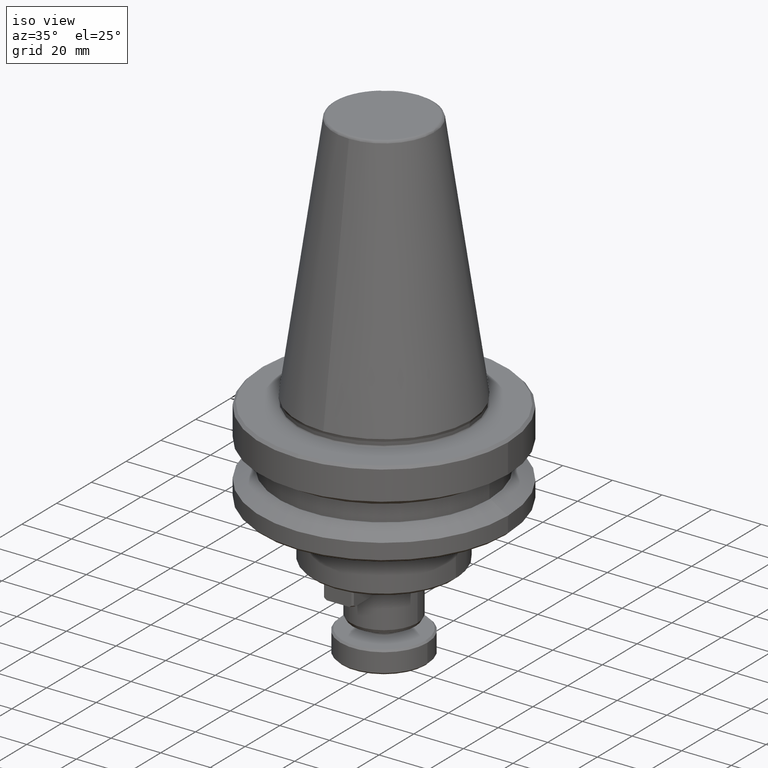
[diagram: clean part render]
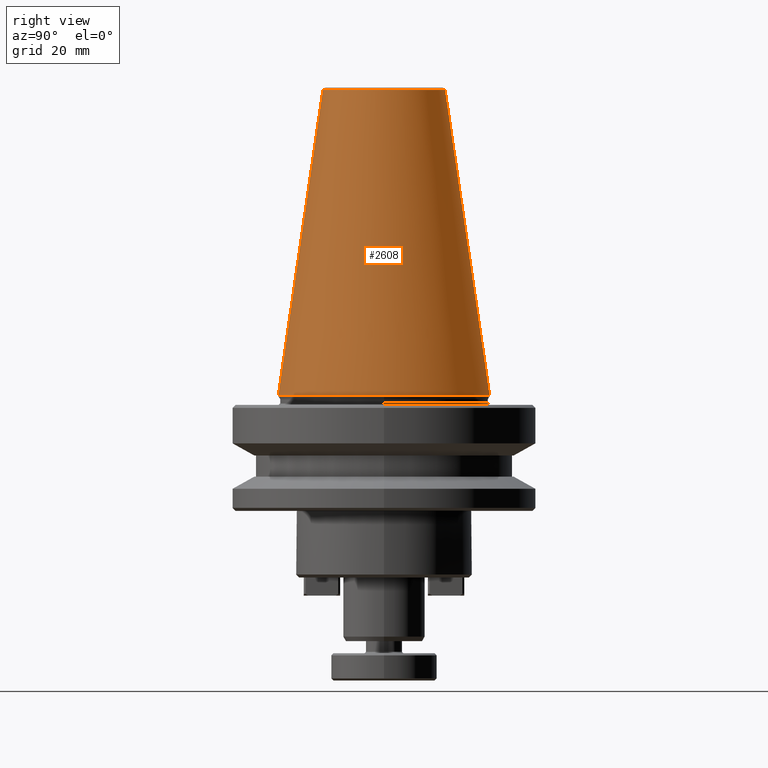
[diagram: tour spotlight — one face highlighted and labeled with its STEP entity id]
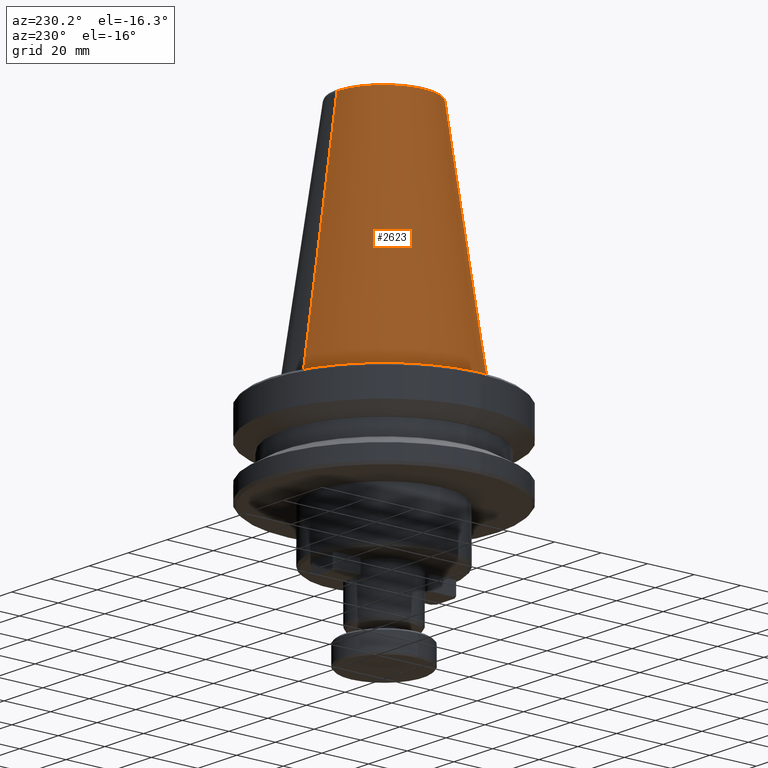
[diagram: tour spotlight — one face highlighted and labeled with its STEP entity id]
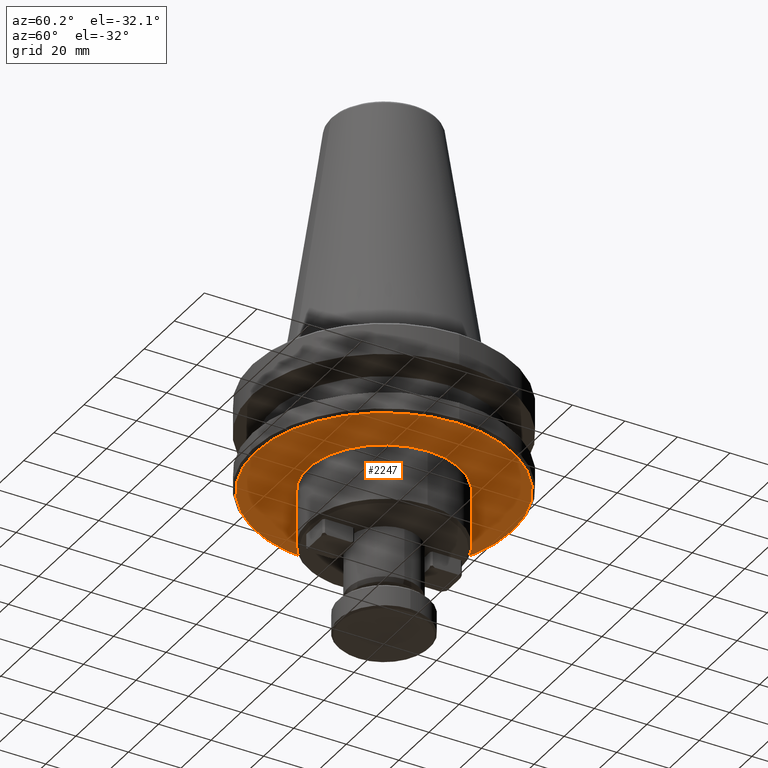
[diagram: tour spotlight — one face highlighted and labeled with its STEP entity id]
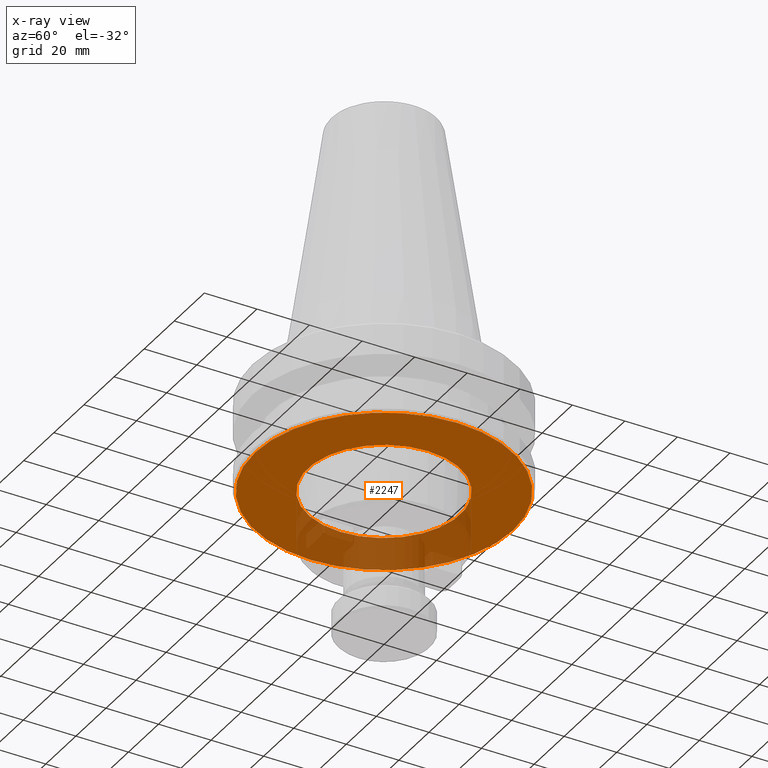
[diagram: x-ray of the same camera — body ghosted, this tour face saturated]
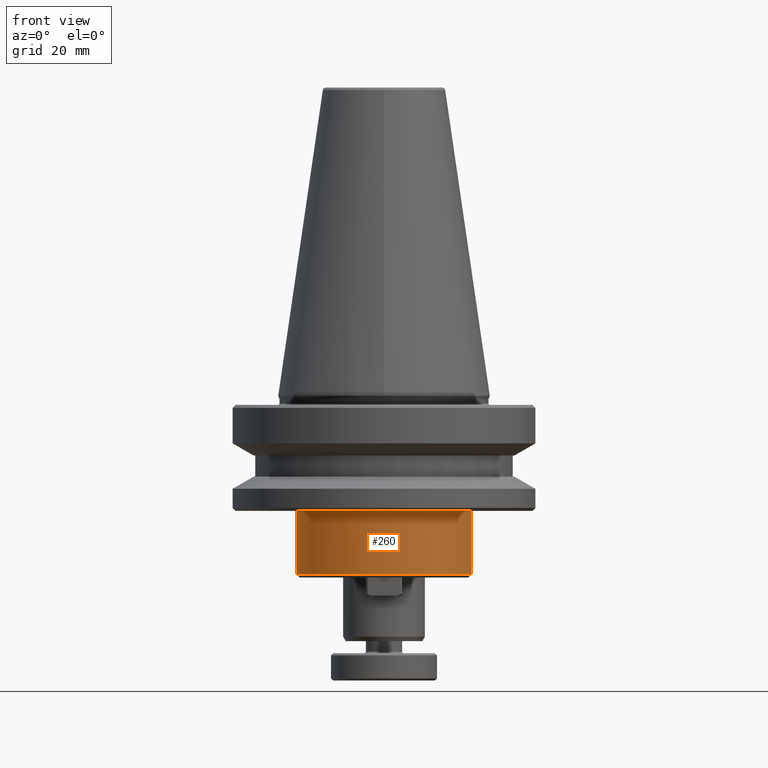
[diagram: tour spotlight — one face highlighted and labeled with its STEP entity id]
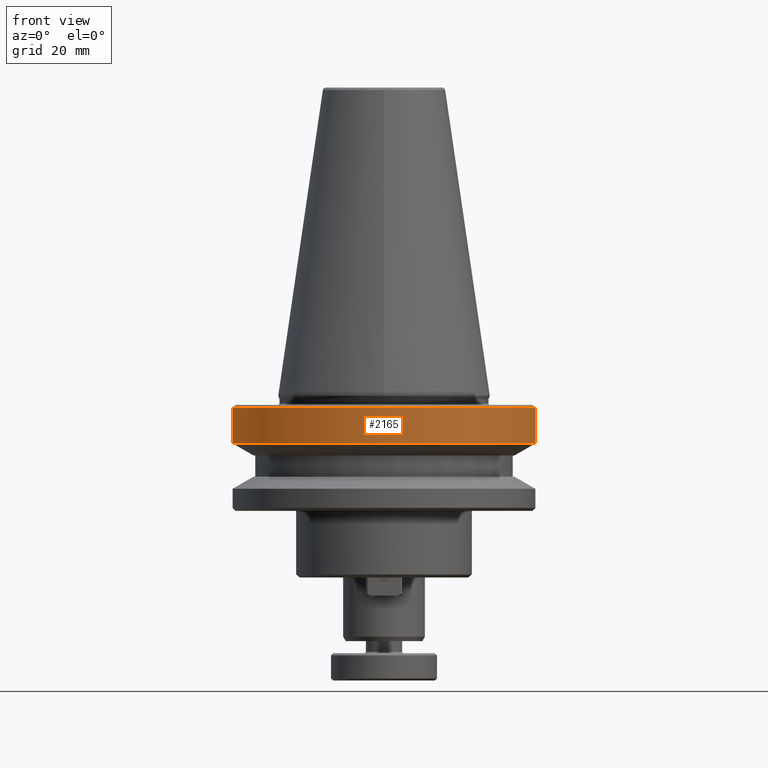
[diagram: tour spotlight — one face highlighted and labeled with its STEP entity id]
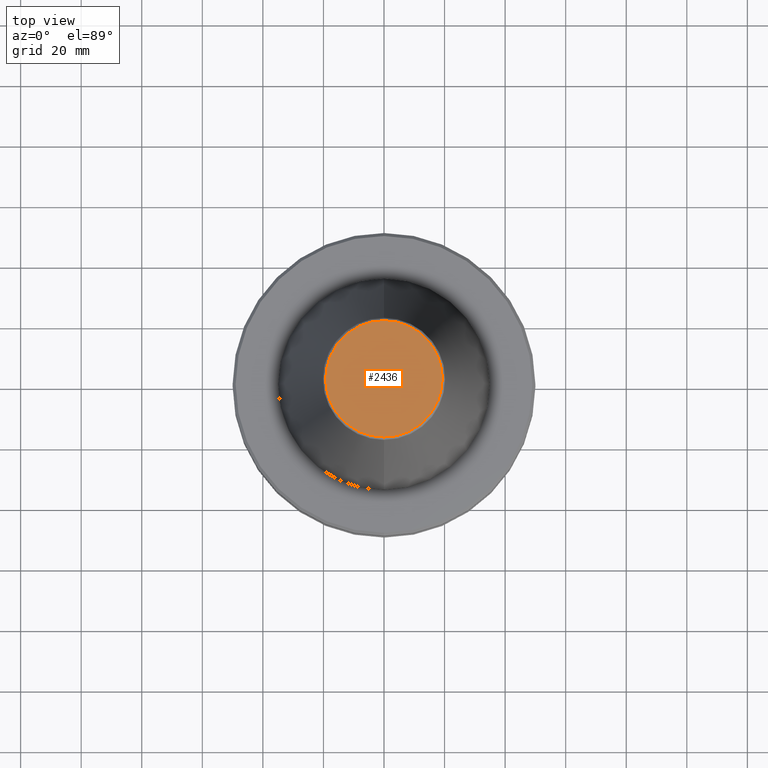
[diagram: tour spotlight — one face highlighted and labeled with its STEP entity id]
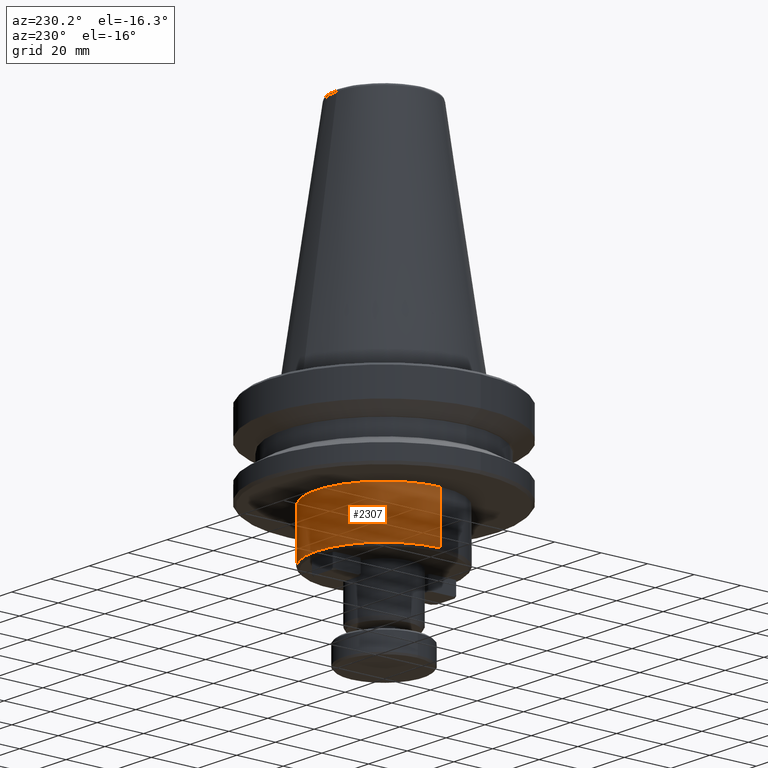
[diagram: tour spotlight — one face highlighted and labeled with its STEP entity id]
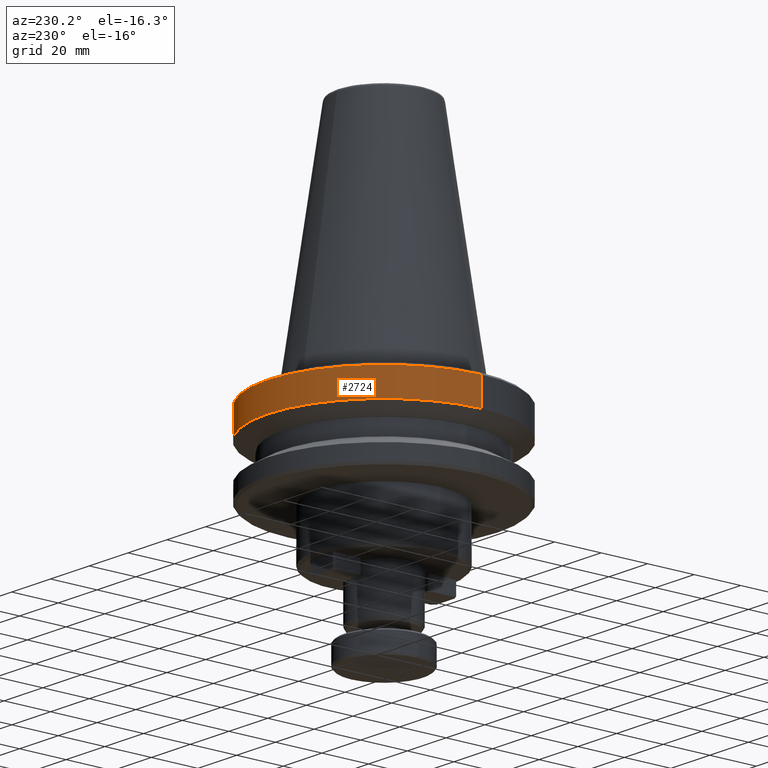
[diagram: tour spotlight — one face highlighted and labeled with its STEP entity id]
A machine part: a face-by-face anatomy tour. The part has 77 B-rep faces; the first image is the clean iso view, then the 8 largest visible faces are spotlighted one at a time (largest first), each with its STEP entity span.

Face 1 — right view, entity #2608. In plain terms, the highlighted conical surface has half-angle 8.297 deg.
Definition (entity closure, byte-faithful):
#57 = DIRECTION ( 'NONE',  ( -1.000000000000000000, 0.0000000000000000000, -3.611427007686981100E-016 ) ) ;
#62 = DIRECTION ( 'NONE',  ( -0.0000000000000000000, -0.0000000000000000000, 1.000000000000000000 ) ) ;
#65 = CARTESIAN_POINT ( 'NONE',  ( 0.0000000000000000000, 0.0000000000000000000, 0.0000000000000000000 ) ) ;
#102 = EDGE_CURVE ( 'NONE', #2296, #519, #1558, .T. ) ;
#166 = EDGE_CURVE ( 'NONE', #1131, #2624, #1483, .T. ) ;
#219 = EDGE_CURVE ( 'NONE', #790, #2296, #2029, .T. ) ;
#232 = ORIENTED_EDGE ( 'NONE', *, *, #166, .F. ) ;
#259 = CARTESIAN_POINT ( 'NONE',  ( 4.277078946022130900E-015, -34.92499999999999700, 0.0000000000000000000 ) ) ;
#416 = FACE_OUTER_BOUND ( 'NONE', #973, .T. ) ;
#519 = VERTEX_POINT ( 'NONE', #259 ) ;
#618 = CARTESIAN_POINT ( 'NONE',  ( 0.0000000000000000000, 20.20381605152244500, 100.9443082272672700 ) ) ;
#619 = EDGE_CURVE ( 'NONE', #1770, #2624, #932, .T. ) ;
#623 = DIRECTION ( 'NONE',  ( 0.0000000000000000000, 0.0000000000000000000, -1.000000000000000000 ) ) ;
#639 = CIRCLE ( 'NONE', #1805, 20.20381605152244500 ) ;
#724 = CONICAL_SURFACE ( 'NONE', #2020, 34.92499999999999700, 0.1448138465474120300 ) ;
#790 = VERTEX_POINT ( 'NONE', #834 ) ;
#834 = CARTESIAN_POINT ( 'NONE',  ( 20.20381605152244500, 0.0000000000000000000, 100.9443082272672700 ) ) ;
#932 = CIRCLE ( 'NONE', #2453, 34.92499999999999700 ) ;
#933 = VECTOR ( 'NONE', #1079, 1000.000000000000000 ) ;
#973 = EDGE_LOOP ( 'NONE', ( #2087, #1987, #1515, #1224, #2469, #232 ) ) ;
#1001 = CARTESIAN_POINT ( 'NONE',  ( 0.0000000000000000000, 0.0000000000000000000, 0.0000000000000000000 ) ) ;
#1079 = DIRECTION ( 'NONE',  ( 1.767266086135278000E-017, -0.1443082272673000500, -0.9895327864921754600 ) ) ;
#1131 = VERTEX_POINT ( 'NONE', #618 ) ;
#1135 = EDGE_CURVE ( 'NONE', #519, #1770, #1252, .T. ) ;
#1154 = EDGE_CURVE ( 'NONE', #1131, #790, #639, .T. ) ;
#1180 = CARTESIAN_POINT ( 'NONE',  ( 0.0000000000000000000, 34.92499999999999700, 0.0000000000000000000 ) ) ;
#1195 = DIRECTION ( 'NONE',  ( 0.0000000000000000000, 1.000000000000000000, 4.411578970679424000E-032 ) ) ;
#1197 = DIRECTION ( 'NONE',  ( 0.0000000000000000000, 2.205789485339712300E-032, -1.000000000000000000 ) ) ;
#1224 = ORIENTED_EDGE ( 'NONE', *, *, #1135, .T. ) ;
#1237 = DIRECTION ( 'NONE',  ( -1.000000000000000000, 0.0000000000000000000, -3.611427007686981100E-016 ) ) ;
#1252 = CIRCLE ( 'NONE', #1849, 34.92499999999999700 ) ;
#1266 = CARTESIAN_POINT ( 'NONE',  ( 0.0000000000000000000, 0.0000000000000000000, -1.235024670767087600E-014 ) ) ;
#1329 = CARTESIAN_POINT ( 'NONE',  ( 0.0000000000000000000, 34.92499999999999700, -1.235024670767087400E-014 ) ) ;
#1483 = LINE ( 'NONE', #1329, #2652 ) ;
#1494 = DIRECTION ( 'NONE',  ( 0.0000000000000000000, 0.0000000000000000000, -1.000000000000000000 ) ) ;
#1501 = CARTESIAN_POINT ( 'NONE',  ( 0.0000000000000000000, 0.0000000000000000000, 100.9443082272672700 ) ) ;
#1515 = ORIENTED_EDGE ( 'NONE', *, *, #102, .T. ) ;
#1558 = LINE ( 'NONE', #2418, #933 ) ;
#1685 = CARTESIAN_POINT ( 'NONE',  ( 3.375666405914009500E-015, -20.20381605152244500, 100.9443082272672700 ) ) ;
#1712 = DIRECTION ( 'NONE',  ( -1.000000000000000000, 0.0000000000000000000, 0.0000000000000000000 ) ) ;
#1770 = VERTEX_POINT ( 'NONE', #2549 ) ;
#1805 = AXIS2_PLACEMENT_3D ( 'NONE', #1934, #623, #2175 ) ;
#1849 = AXIS2_PLACEMENT_3D ( 'NONE', #1001, #2635, #1237 ) ;
#1934 = CARTESIAN_POINT ( 'NONE',  ( 0.0000000000000000000, 0.0000000000000000000, 100.9443082272672700 ) ) ;
#1987 = ORIENTED_EDGE ( 'NONE', *, *, #219, .T. ) ;
#1994 = AXIS2_PLACEMENT_3D ( 'NONE', #1501, #1494, #1712 ) ;
#2020 = AXIS2_PLACEMENT_3D ( 'NONE', #1266, #1197, #1195 ) ;
#2029 = CIRCLE ( 'NONE', #1994, 20.20381605152244500 ) ;
#2087 = ORIENTED_EDGE ( 'NONE', *, *, #1154, .T. ) ;
#2175 = DIRECTION ( 'NONE',  ( -1.000000000000000000, 0.0000000000000000000, 0.0000000000000000000 ) ) ;
#2280 = DIRECTION ( 'NONE',  ( 0.0000000000000000000, 0.1443082272673000500, -0.9895327864921754600 ) ) ;
#2296 = VERTEX_POINT ( 'NONE', #1685 ) ;
#2418 = CARTESIAN_POINT ( 'NONE',  ( 4.277078946022130900E-015, -34.92499999999999700, -1.235024670767087800E-014 ) ) ;
#2453 = AXIS2_PLACEMENT_3D ( 'NONE', #65, #62, #57 ) ;
#2469 = ORIENTED_EDGE ( 'NONE', *, *, #619, .T. ) ;
#2549 = CARTESIAN_POINT ( 'NONE',  ( 34.92499999999999700, 0.0000000000000000000, 0.0000000000000000000 ) ) ;
#2608 = ADVANCED_FACE ( 'NONE', ( #416 ), #724, .T. ) ;
#2624 = VERTEX_POINT ( 'NONE', #1180 ) ;
#2635 = DIRECTION ( 'NONE',  ( -0.0000000000000000000, -0.0000000000000000000, 1.000000000000000000 ) ) ;
#2652 = VECTOR ( 'NONE', #2280, 1000.000000000000000 ) ;

Face 2 — auxiliary view, entity #2623. In plain terms, the highlighted conical surface has half-angle 8.297 deg.
Definition (entity closure, byte-faithful):
#102 = EDGE_CURVE ( 'NONE', #2296, #519, #1558, .T. ) ;
#140 = EDGE_CURVE ( 'NONE', #1499, #519, #454, .T. ) ;
#166 = EDGE_CURVE ( 'NONE', #1131, #2624, #1483, .T. ) ;
#176 = ORIENTED_EDGE ( 'NONE', *, *, #1421, .T. ) ;
#252 = EDGE_CURVE ( 'NONE', #1535, #1131, #1265, .T. ) ;
#259 = CARTESIAN_POINT ( 'NONE',  ( 4.277078946022130900E-015, -34.92499999999999700, 0.0000000000000000000 ) ) ;
#301 = EDGE_CURVE ( 'NONE', #2624, #1499, #1655, .T. ) ;
#390 = ORIENTED_EDGE ( 'NONE', *, *, #301, .T. ) ;
#434 = EDGE_LOOP ( 'NONE', ( #556, #176, #815, #2027, #390, #2100 ) ) ;
#454 = CIRCLE ( 'NONE', #1721, 34.92499999999999700 ) ;
#519 = VERTEX_POINT ( 'NONE', #259 ) ;
#556 = ORIENTED_EDGE ( 'NONE', *, *, #102, .F. ) ;
#618 = CARTESIAN_POINT ( 'NONE',  ( 0.0000000000000000000, 20.20381605152244500, 100.9443082272672700 ) ) ;
#761 = DIRECTION ( 'NONE',  ( -1.000000000000000000, -8.881784197001252300E-016, -3.611427007686981100E-016 ) ) ;
#815 = ORIENTED_EDGE ( 'NONE', *, *, #252, .T. ) ;
#816 = DIRECTION ( 'NONE',  ( -1.000000000000000000, 0.0000000000000000000, -3.611427007686981100E-016 ) ) ;
#868 = CARTESIAN_POINT ( 'NONE',  ( 0.0000000000000000000, 0.0000000000000000000, 100.9443082272672700 ) ) ;
#913 = CARTESIAN_POINT ( 'NONE',  ( 0.0000000000000000000, 0.0000000000000000000, 0.0000000000000000000 ) ) ;
#933 = VECTOR ( 'NONE', #1079, 1000.000000000000000 ) ;
#953 = DIRECTION ( 'NONE',  ( -0.0000000000000000000, -0.0000000000000000000, 1.000000000000000000 ) ) ;
#1079 = DIRECTION ( 'NONE',  ( 1.767266086135278000E-017, -0.1443082272673000500, -0.9895327864921754600 ) ) ;
#1084 = DIRECTION ( 'NONE',  ( -1.000000000000000000, 0.0000000000000000000, 0.0000000000000000000 ) ) ;
#1131 = VERTEX_POINT ( 'NONE', #618 ) ;
#1180 = CARTESIAN_POINT ( 'NONE',  ( 0.0000000000000000000, 34.92499999999999700, 0.0000000000000000000 ) ) ;
#1188 = DIRECTION ( 'NONE',  ( 0.0000000000000000000, 2.205789485339712300E-032, -1.000000000000000000 ) ) ;
#1192 = CARTESIAN_POINT ( 'NONE',  ( 0.0000000000000000000, 0.0000000000000000000, -1.235024670767087600E-014 ) ) ;
#1205 = DIRECTION ( 'NONE',  ( 0.0000000000000000000, 1.000000000000000000, 4.411578970679424000E-032 ) ) ;
#1230 = CARTESIAN_POINT ( 'NONE',  ( 0.0000000000000000000, 0.0000000000000000000, 100.9443082272672700 ) ) ;
#1265 = CIRCLE ( 'NONE', #2198, 20.20381605152244500 ) ;
#1329 = CARTESIAN_POINT ( 'NONE',  ( 0.0000000000000000000, 34.92499999999999700, -1.235024670767087400E-014 ) ) ;
#1421 = EDGE_CURVE ( 'NONE', #2296, #1535, #1752, .T. ) ;
#1426 = FACE_OUTER_BOUND ( 'NONE', #434, .T. ) ;
#1483 = LINE ( 'NONE', #1329, #2652 ) ;
#1499 = VERTEX_POINT ( 'NONE', #1561 ) ;
#1535 = VERTEX_POINT ( 'NONE', #1783 ) ;
#1549 = AXIS2_PLACEMENT_3D ( 'NONE', #868, #2496, #1084 ) ;
#1558 = LINE ( 'NONE', #2418, #933 ) ;
#1561 = CARTESIAN_POINT ( 'NONE',  ( -34.92499999999999700, 4.277078946022130900E-015, 0.0000000000000000000 ) ) ;
#1652 = DIRECTION ( 'NONE',  ( 0.0000000000000000000, 0.0000000000000000000, -1.000000000000000000 ) ) ;
#1655 = CIRCLE ( 'NONE', #2586, 34.92499999999999700 ) ;
#1685 = CARTESIAN_POINT ( 'NONE',  ( 3.375666405914009500E-015, -20.20381605152244500, 100.9443082272672700 ) ) ;
#1721 = AXIS2_PLACEMENT_3D ( 'NONE', #913, #953, #816 ) ;
#1730 = CARTESIAN_POINT ( 'NONE',  ( 0.0000000000000000000, 0.0000000000000000000, 0.0000000000000000000 ) ) ;
#1752 = CIRCLE ( 'NONE', #1549, 20.20381605152244500 ) ;
#1776 = DIRECTION ( 'NONE',  ( -1.000000000000000000, 0.0000000000000000000, 0.0000000000000000000 ) ) ;
#1783 = CARTESIAN_POINT ( 'NONE',  ( -20.20381605152244500, 2.474253865805887700E-015, 100.9443082272672700 ) ) ;
#1982 = AXIS2_PLACEMENT_3D ( 'NONE', #1192, #1188, #1205 ) ;
#2027 = ORIENTED_EDGE ( 'NONE', *, *, #166, .T. ) ;
#2100 = ORIENTED_EDGE ( 'NONE', *, *, #140, .T. ) ;
#2198 = AXIS2_PLACEMENT_3D ( 'NONE', #1230, #1652, #1776 ) ;
#2280 = DIRECTION ( 'NONE',  ( 0.0000000000000000000, 0.1443082272673000500, -0.9895327864921754600 ) ) ;
#2296 = VERTEX_POINT ( 'NONE', #1685 ) ;
#2352 = DIRECTION ( 'NONE',  ( -0.0000000000000000000, -0.0000000000000000000, 1.000000000000000000 ) ) ;
#2418 = CARTESIAN_POINT ( 'NONE',  ( 4.277078946022130900E-015, -34.92499999999999700, -1.235024670767087800E-014 ) ) ;
#2463 = CONICAL_SURFACE ( 'NONE', #1982, 34.92499999999999700, 0.1448138465474120300 ) ;
#2496 = DIRECTION ( 'NONE',  ( 0.0000000000000000000, 0.0000000000000000000, -1.000000000000000000 ) ) ;
#2586 = AXIS2_PLACEMENT_3D ( 'NONE', #1730, #2352, #761 ) ;
#2623 = ADVANCED_FACE ( 'NONE', ( #1426 ), #2463, .T. ) ;
#2624 = VERTEX_POINT ( 'NONE', #1180 ) ;
#2652 = VECTOR ( 'NONE', #2280, 1000.000000000000000 ) ;

Face 3 — auxiliary view, entity #2247. An x-ray twin of the same camera follows (body ghosted, this face saturated) — the face is partly hidden behind the body. In plain terms, the highlighted planar face has unit normal (0, 0, 1).
Definition (entity closure, byte-faithful):
#33 = CARTESIAN_POINT ( 'NONE',  ( 0.0000000000000000000, 0.0000000000000000000, -37.99999999999999300 ) ) ;
#56 = ORIENTED_EDGE ( 'NONE', *, *, #2248, .F. ) ;
#89 = AXIS2_PLACEMENT_3D ( 'NONE', #33, #1374, #198 ) ;
#112 = CIRCLE ( 'NONE', #2387, 49.00000000000000000 ) ;
#146 = CARTESIAN_POINT ( 'NONE',  ( 0.0000000000000000000, 0.0000000000000000000, -38.00000000000002100 ) ) ;
#198 = DIRECTION ( 'NONE',  ( 1.000000000000000000, 0.0000000000000000000, 0.0000000000000000000 ) ) ;
#313 = AXIS2_PLACEMENT_3D ( 'NONE', #366, #1835, #550 ) ;
#319 = DIRECTION ( 'NONE',  ( 1.000000000000000000, 0.0000000000000000000, 0.0000000000000000000 ) ) ;
#325 = CARTESIAN_POINT ( 'NONE',  ( 49.00000000000000000, 0.0000000000000000000, -38.00000000000002100 ) ) ;
#326 = AXIS2_PLACEMENT_3D ( 'NONE', #1740, #1739, #1735 ) ;
#330 = AXIS2_PLACEMENT_3D ( 'NONE', #1716, #1709, #1708 ) ;
#366 = CARTESIAN_POINT ( 'NONE',  ( 0.0000000000000000000, 0.0000000000000000000, -38.00000000000002100 ) ) ;
#448 = CARTESIAN_POINT ( 'NONE',  ( -29.00000000000000000, 3.551475717527324000E-015, -37.99999999999999300 ) ) ;
#491 = VERTEX_POINT ( 'NONE', #325 ) ;
#500 = CARTESIAN_POINT ( 'NONE',  ( -49.00000000000000000, 6.062001655779398500E-015, -38.00000000000002100 ) ) ;
#550 = DIRECTION ( 'NONE',  ( 1.000000000000000000, 0.0000000000000000000, 0.0000000000000000000 ) ) ;
#723 = EDGE_CURVE ( 'NONE', #1403, #491, #2638, .T. ) ;
#732 = EDGE_CURVE ( 'NONE', #2209, #1200, #2017, .T. ) ;
#879 = EDGE_CURVE ( 'NONE', #491, #1403, #112, .T. ) ;
#924 = FACE_OUTER_BOUND ( 'NONE', #2456, .T. ) ;
#952 = ORIENTED_EDGE ( 'NONE', *, *, #879, .F. ) ;
#1200 = VERTEX_POINT ( 'NONE', #448 ) ;
#1374 = DIRECTION ( 'NONE',  ( -0.0000000000000000000, -0.0000000000000000000, -1.000000000000000000 ) ) ;
#1403 = VERTEX_POINT ( 'NONE', #500 ) ;
#1529 = EDGE_LOOP ( 'NONE', ( #2192, #56 ) ) ;
#1543 = DIRECTION ( 'NONE',  ( 0.0000000000000000000, -0.0000000000000000000, 1.000000000000000000 ) ) ;
#1548 = CIRCLE ( 'NONE', #330, 29.00000000000000000 ) ;
#1574 = ORIENTED_EDGE ( 'NONE', *, *, #723, .F. ) ;
#1708 = DIRECTION ( 'NONE',  ( 1.000000000000000000, 0.0000000000000000000, 0.0000000000000000000 ) ) ;
#1709 = DIRECTION ( 'NONE',  ( -0.0000000000000000000, -0.0000000000000000000, -1.000000000000000000 ) ) ;
#1716 = CARTESIAN_POINT ( 'NONE',  ( 0.0000000000000000000, 0.0000000000000000000, -37.99999999999999300 ) ) ;
#1735 = DIRECTION ( 'NONE',  ( 1.000000000000000000, 0.0000000000000000000, -0.0000000000000000000 ) ) ;
#1739 = DIRECTION ( 'NONE',  ( 0.0000000000000000000, 0.0000000000000000000, 1.000000000000000000 ) ) ;
#1740 = CARTESIAN_POINT ( 'NONE',  ( 0.0000000000000000000, 49.00000000000000000, -38.00000000000000700 ) ) ;
#1753 = PLANE ( 'NONE',  #326 ) ;
#1762 = CARTESIAN_POINT ( 'NONE',  ( 29.00000000000000000, 0.0000000000000000000, -37.99999999999999300 ) ) ;
#1835 = DIRECTION ( 'NONE',  ( 0.0000000000000000000, -0.0000000000000000000, 1.000000000000000000 ) ) ;
#2017 = CIRCLE ( 'NONE', #89, 29.00000000000000000 ) ;
#2192 = ORIENTED_EDGE ( 'NONE', *, *, #732, .F. ) ;
#2209 = VERTEX_POINT ( 'NONE', #1762 ) ;
#2247 = ADVANCED_FACE ( 'NONE', ( #924, #2715 ), #1753, .F. ) ;
#2248 = EDGE_CURVE ( 'NONE', #1200, #2209, #1548, .T. ) ;
#2387 = AXIS2_PLACEMENT_3D ( 'NONE', #146, #1543, #319 ) ;
#2456 = EDGE_LOOP ( 'NONE', ( #952, #1574 ) ) ;
#2638 = CIRCLE ( 'NONE', #313, 49.00000000000000000 ) ;
#2715 = FACE_BOUND ( 'NONE', #1529, .T. ) ;

Face 4 — front view, entity #260. In plain terms, the highlighted cylindrical surface (partial cylindrical patch) has radius 29 mm, axis along (0, 0, 1).
Definition (entity closure, byte-faithful):
#1 = ORIENTED_EDGE ( 'NONE', *, *, #1269, .T. ) ;
#33 = CARTESIAN_POINT ( 'NONE',  ( 0.0000000000000000000, 0.0000000000000000000, -37.99999999999999300 ) ) ;
#89 = AXIS2_PLACEMENT_3D ( 'NONE', #33, #1374, #198 ) ;
#99 = DIRECTION ( 'NONE',  ( 1.000000000000000000, 0.0000000000000000000, 0.0000000000000000000 ) ) ;
#101 = DIRECTION ( 'NONE',  ( 0.0000000000000000000, 0.0000000000000000000, 1.000000000000000000 ) ) ;
#105 = CARTESIAN_POINT ( 'NONE',  ( 0.0000000000000000000, 0.0000000000000000000, -59.00000000000001400 ) ) ;
#198 = DIRECTION ( 'NONE',  ( 1.000000000000000000, 0.0000000000000000000, 0.0000000000000000000 ) ) ;
#260 = ADVANCED_FACE ( 'NONE', ( #2505 ), #2431, .T. ) ;
#359 = CIRCLE ( 'NONE', #458, 29.00000000000000000 ) ;
#389 = EDGE_CURVE ( 'NONE', #2517, #1464, #359, .T. ) ;
#448 = CARTESIAN_POINT ( 'NONE',  ( -29.00000000000000000, 3.551475717527324000E-015, -37.99999999999999300 ) ) ;
#458 = AXIS2_PLACEMENT_3D ( 'NONE', #614, #610, #607 ) ;
#468 = ORIENTED_EDGE ( 'NONE', *, *, #732, .T. ) ;
#474 = CARTESIAN_POINT ( 'NONE',  ( 29.00000000000000000, 0.0000000000000000000, 118.5507178974871000 ) ) ;
#598 = EDGE_LOOP ( 'NONE', ( #820, #2034, #2654, #1, #468 ) ) ;
#599 = EDGE_CURVE ( 'NONE', #781, #2517, #1555, .T. ) ;
#607 = DIRECTION ( 'NONE',  ( 1.000000000000000000, 0.0000000000000000000, 0.0000000000000000000 ) ) ;
#610 = DIRECTION ( 'NONE',  ( 0.0000000000000000000, 0.0000000000000000000, 1.000000000000000000 ) ) ;
#614 = CARTESIAN_POINT ( 'NONE',  ( 0.0000000000000000000, 0.0000000000000000000, -59.00000000000001400 ) ) ;
#732 = EDGE_CURVE ( 'NONE', #2209, #1200, #2017, .T. ) ;
#781 = VERTEX_POINT ( 'NONE', #1490 ) ;
#820 = ORIENTED_EDGE ( 'NONE', *, *, #1673, .F. ) ;
#833 = DIRECTION ( 'NONE',  ( 1.000000000000000000, 0.0000000000000000000, 0.0000000000000000000 ) ) ;
#835 = VECTOR ( 'NONE', #2621, 1000.000000000000000 ) ;
#1037 = DIRECTION ( 'NONE',  ( 0.0000000000000000000, 0.0000000000000000000, 1.000000000000000000 ) ) ;
#1200 = VERTEX_POINT ( 'NONE', #448 ) ;
#1223 = DIRECTION ( 'NONE',  ( 0.0000000000000000000, 0.0000000000000000000, 1.000000000000000000 ) ) ;
#1234 = CARTESIAN_POINT ( 'NONE',  ( 0.0000000000000000000, 0.0000000000000000000, 118.5507178974871000 ) ) ;
#1269 = EDGE_CURVE ( 'NONE', #1464, #2209, #1504, .T. ) ;
#1374 = DIRECTION ( 'NONE',  ( -0.0000000000000000000, -0.0000000000000000000, -1.000000000000000000 ) ) ;
#1408 = CARTESIAN_POINT ( 'NONE',  ( 0.0000000000000000000, -29.00000000000000000, -59.00000000000001400 ) ) ;
#1464 = VERTEX_POINT ( 'NONE', #2252 ) ;
#1490 = CARTESIAN_POINT ( 'NONE',  ( -29.00000000000000000, 3.551475717527324000E-015, -59.00000000000001400 ) ) ;
#1504 = LINE ( 'NONE', #474, #2053 ) ;
#1555 = CIRCLE ( 'NONE', #2620, 29.00000000000000000 ) ;
#1673 = EDGE_CURVE ( 'NONE', #781, #1200, #2642, .T. ) ;
#1762 = CARTESIAN_POINT ( 'NONE',  ( 29.00000000000000000, 0.0000000000000000000, -37.99999999999999300 ) ) ;
#2017 = CIRCLE ( 'NONE', #89, 29.00000000000000000 ) ;
#2034 = ORIENTED_EDGE ( 'NONE', *, *, #599, .T. ) ;
#2053 = VECTOR ( 'NONE', #1037, 1000.000000000000000 ) ;
#2209 = VERTEX_POINT ( 'NONE', #1762 ) ;
#2252 = CARTESIAN_POINT ( 'NONE',  ( 29.00000000000000000, 0.0000000000000000000, -59.00000000000001400 ) ) ;
#2428 = AXIS2_PLACEMENT_3D ( 'NONE', #1234, #1223, #833 ) ;
#2431 = CYLINDRICAL_SURFACE ( 'NONE', #2428, 29.00000000000000000 ) ;
#2505 = FACE_OUTER_BOUND ( 'NONE', #598, .T. ) ;
#2517 = VERTEX_POINT ( 'NONE', #1408 ) ;
#2620 = AXIS2_PLACEMENT_3D ( 'NONE', #105, #101, #99 ) ;
#2621 = DIRECTION ( 'NONE',  ( 0.0000000000000000000, 0.0000000000000000000, 1.000000000000000000 ) ) ;
#2631 = CARTESIAN_POINT ( 'NONE',  ( -29.00000000000000000, 3.551475717527324000E-015, 118.5507178974871000 ) ) ;
#2642 = LINE ( 'NONE', #2631, #835 ) ;
#2654 = ORIENTED_EDGE ( 'NONE', *, *, #389, .T. ) ;

Face 5 — front view, entity #2165. In plain terms, the highlighted cylindrical surface (partial cylindrical patch) has radius 50 mm, axis along (0, 0, 1).
Definition (entity closure, byte-faithful):
#159 = FACE_OUTER_BOUND ( 'NONE', #1659, .T. ) ;
#243 = CARTESIAN_POINT ( 'NONE',  ( 50.00000000000000000, 0.0000000000000000000, 124.5046326327850600 ) ) ;
#248 = VERTEX_POINT ( 'NONE', #1014 ) ;
#275 = CARTESIAN_POINT ( 'NONE',  ( -50.00000000000000000, 6.123233995736766100E-015, -15.70022000322675400 ) ) ;
#285 = DIRECTION ( 'NONE',  ( 0.0000000000000000000, 0.0000000000000000000, 1.000000000000000000 ) ) ;
#372 = ORIENTED_EDGE ( 'NONE', *, *, #1568, .T. ) ;
#374 = AXIS2_PLACEMENT_3D ( 'NONE', #1833, #1859, #1824 ) ;
#517 = VERTEX_POINT ( 'NONE', #275 ) ;
#536 = EDGE_CURVE ( 'NONE', #248, #2285, #2397, .T. ) ;
#566 = CARTESIAN_POINT ( 'NONE',  ( -50.00000000000000000, 6.123233995736766100E-015, 124.5046326327850600 ) ) ;
#633 = DIRECTION ( 'NONE',  ( -0.0000000000000000000, -0.0000000000000000000, 1.000000000000000000 ) ) ;
#665 = CARTESIAN_POINT ( 'NONE',  ( 6.123233995736766100E-015, -50.00000000000000000, -3.999999999999989800 ) ) ;
#751 = EDGE_CURVE ( 'NONE', #517, #926, #1248, .T. ) ;
#852 = ORIENTED_EDGE ( 'NONE', *, *, #536, .T. ) ;
#926 = VERTEX_POINT ( 'NONE', #2573 ) ;
#1014 = CARTESIAN_POINT ( 'NONE',  ( 50.00000000000000000, 0.0000000000000000000, -15.70022000322675400 ) ) ;
#1172 = CIRCLE ( 'NONE', #1754, 50.00000000000000000 ) ;
#1191 = EDGE_CURVE ( 'NONE', #926, #1342, #1172, .T. ) ;
#1248 = LINE ( 'NONE', #566, #1312 ) ;
#1312 = VECTOR ( 'NONE', #2101, 1000.000000000000000 ) ;
#1342 = VERTEX_POINT ( 'NONE', #665 ) ;
#1397 = AXIS2_PLACEMENT_3D ( 'NONE', #2683, #2729, #2736 ) ;
#1455 = ORIENTED_EDGE ( 'NONE', *, *, #2468, .F. ) ;
#1461 = DIRECTION ( 'NONE',  ( -1.000000000000000000, 0.0000000000000000000, -3.469446951953614200E-017 ) ) ;
#1468 = DIRECTION ( 'NONE',  ( -0.0000000000000000000, -0.0000000000000000000, 1.000000000000000000 ) ) ;
#1469 = CARTESIAN_POINT ( 'NONE',  ( 0.0000000000000000000, 0.0000000000000000000, -3.999999999999989800 ) ) ;
#1568 = EDGE_CURVE ( 'NONE', #517, #248, #2230, .T. ) ;
#1659 = EDGE_LOOP ( 'NONE', ( #2625, #372, #852, #1455, #2081 ) ) ;
#1690 = CARTESIAN_POINT ( 'NONE',  ( 50.00000000000000000, 0.0000000000000000000, -3.999999999999989800 ) ) ;
#1754 = AXIS2_PLACEMENT_3D ( 'NONE', #1945, #633, #2183 ) ;
#1824 = DIRECTION ( 'NONE',  ( 1.000000000000000000, 0.0000000000000000000, 0.0000000000000000000 ) ) ;
#1833 = CARTESIAN_POINT ( 'NONE',  ( 0.0000000000000000000, 0.0000000000000000000, 124.5046326327850600 ) ) ;
#1859 = DIRECTION ( 'NONE',  ( 0.0000000000000000000, 0.0000000000000000000, 1.000000000000000000 ) ) ;
#1945 = CARTESIAN_POINT ( 'NONE',  ( 0.0000000000000000000, 0.0000000000000000000, -3.999999999999989800 ) ) ;
#2081 = ORIENTED_EDGE ( 'NONE', *, *, #1191, .F. ) ;
#2101 = DIRECTION ( 'NONE',  ( 0.0000000000000000000, 0.0000000000000000000, 1.000000000000000000 ) ) ;
#2165 = ADVANCED_FACE ( 'NONE', ( #159 ), #2266, .T. ) ;
#2183 = DIRECTION ( 'NONE',  ( -1.000000000000000000, 0.0000000000000000000, -3.469446951953614200E-017 ) ) ;
#2230 = CIRCLE ( 'NONE', #1397, 50.00000000000000000 ) ;
#2243 = VECTOR ( 'NONE', #285, 1000.000000000000000 ) ;
#2266 = CYLINDRICAL_SURFACE ( 'NONE', #374, 50.00000000000000000 ) ;
#2285 = VERTEX_POINT ( 'NONE', #1690 ) ;
#2397 = LINE ( 'NONE', #243, #2243 ) ;
#2468 = EDGE_CURVE ( 'NONE', #1342, #2285, #2571, .T. ) ;
#2471 = AXIS2_PLACEMENT_3D ( 'NONE', #1469, #1468, #1461 ) ;
#2571 = CIRCLE ( 'NONE', #2471, 50.00000000000000000 ) ;
#2573 = CARTESIAN_POINT ( 'NONE',  ( -50.00000000000000000, 6.123233995736766100E-015, -3.999999999999989800 ) ) ;
#2625 = ORIENTED_EDGE ( 'NONE', *, *, #751, .F. ) ;
#2683 = CARTESIAN_POINT ( 'NONE',  ( 0.0000000000000000000, 0.0000000000000000000, -15.70022000322675400 ) ) ;
#2729 = DIRECTION ( 'NONE',  ( 0.0000000000000000000, 0.0000000000000000000, 1.000000000000000000 ) ) ;
#2736 = DIRECTION ( 'NONE',  ( 1.000000000000000000, 0.0000000000000000000, 0.0000000000000000000 ) ) ;

Face 6 — top view, entity #2436. In plain terms, the highlighted planar face has unit normal (0, 0, -1).
Definition (entity closure, byte-faithful):
#109 = VERTEX_POINT ( 'NONE', #1196 ) ;
#294 = EDGE_LOOP ( 'NONE', ( #2561, #2215 ) ) ;
#377 = EDGE_CURVE ( 'NONE', #1953, #109, #1141, .T. ) ;
#829 = EDGE_CURVE ( 'NONE', #109, #1953, #1850, .T. ) ;
#842 = CARTESIAN_POINT ( 'NONE',  ( -19.21428326503027500, 2.377307613035567900E-015, 101.8000000000000000 ) ) ;
#994 = CARTESIAN_POINT ( 'NONE',  ( 19.21428326503027500, 0.0000000000000000000, 101.8000000000000000 ) ) ;
#999 = CARTESIAN_POINT ( 'NONE',  ( 19.21428326503027500, -38.42856653006053600, 101.8000000000000000 ) ) ;
#1009 = CARTESIAN_POINT ( 'NONE',  ( -19.21428326503027500, 2.377307613035567900E-015, 101.8000000000000000 ) ) ;
#1053 = CARTESIAN_POINT ( 'NONE',  ( 19.21428326503027500, 38.42856653006053600, 101.8000000000000000 ) ) ;
#1141 =( BOUNDED_CURVE ( )  B_SPLINE_CURVE ( 3, ( #994, #999, #1317, #1009 ),
 .UNSPECIFIED., .F., .F. ) 
 B_SPLINE_CURVE_WITH_KNOTS ( ( 4, 4 ),
 ( 0.0000000000000000000, 1.000000000000000000 ),
 .UNSPECIFIED. ) 
 CURVE ( )  GEOMETRIC_REPRESENTATION_ITEM ( )  RATIONAL_B_SPLINE_CURVE ( ( 1.000000000000000000, 0.3333333333333333700, 0.3333333333333333700, 1.000000000000000000 ) ) 
 REPRESENTATION_ITEM ( '' )  );
#1176 = FACE_OUTER_BOUND ( 'NONE', #294, .T. ) ;
#1196 = CARTESIAN_POINT ( 'NONE',  ( -19.21428326503027500, 2.377307613035567900E-015, 101.8000000000000000 ) ) ;
#1317 = CARTESIAN_POINT ( 'NONE',  ( -19.21428326503027900, -38.42856653006053600, 101.8000000000000000 ) ) ;
#1522 = DIRECTION ( 'NONE',  ( -1.000000000000000000, 0.0000000000000000000, -0.0000000000000000000 ) ) ;
#1525 = DIRECTION ( 'NONE',  ( 0.0000000000000000000, 0.0000000000000000000, -1.000000000000000000 ) ) ;
#1528 = PLANE ( 'NONE',  #2038 ) ;
#1547 = CARTESIAN_POINT ( 'NONE',  ( 0.0000000000000000000, 0.0000000000000000000, 101.8000000000000000 ) ) ;
#1850 =( BOUNDED_CURVE ( )  B_SPLINE_CURVE ( 3, ( #842, #2458, #1053, #2690 ),
 .UNSPECIFIED., .F., .F. ) 
 B_SPLINE_CURVE_WITH_KNOTS ( ( 4, 4 ),
 ( 0.0000000000000000000, 1.000000000000000000 ),
 .UNSPECIFIED. ) 
 CURVE ( )  GEOMETRIC_REPRESENTATION_ITEM ( )  RATIONAL_B_SPLINE_CURVE ( ( 1.000000000000000000, 0.3333333333333333700, 0.3333333333333333700, 1.000000000000000000 ) ) 
 REPRESENTATION_ITEM ( '' )  );
#1953 = VERTEX_POINT ( 'NONE', #2121 ) ;
#2038 = AXIS2_PLACEMENT_3D ( 'NONE', #1547, #1525, #1522 ) ;
#2121 = CARTESIAN_POINT ( 'NONE',  ( 19.21428326503027500, 0.0000000000000000000, 101.8000000000000000 ) ) ;
#2215 = ORIENTED_EDGE ( 'NONE', *, *, #829, .F. ) ;
#2436 = ADVANCED_FACE ( 'NONE', ( #1176 ), #1528, .F. ) ;
#2458 = CARTESIAN_POINT ( 'NONE',  ( -19.21428326503026800, 38.42856653006053600, 101.8000000000000000 ) ) ;
#2561 = ORIENTED_EDGE ( 'NONE', *, *, #377, .F. ) ;
#2690 = CARTESIAN_POINT ( 'NONE',  ( 19.21428326503027500, 0.0000000000000000000, 101.8000000000000000 ) ) ;

Face 7 — auxiliary view, entity #2307. In plain terms, the highlighted cylindrical surface (partial cylindrical patch) has radius 29 mm, axis along (0, 0, 1).
Definition (entity closure, byte-faithful):
#74 = ORIENTED_EDGE ( 'NONE', *, *, #1673, .T. ) ;
#86 = AXIS2_PLACEMENT_3D ( 'NONE', #1660, #1665, #1674 ) ;
#121 = ORIENTED_EDGE ( 'NONE', *, *, #153, .T. ) ;
#137 = CIRCLE ( 'NONE', #1524, 29.00000000000000000 ) ;
#153 = EDGE_CURVE ( 'NONE', #1464, #1633, #1007, .T. ) ;
#330 = AXIS2_PLACEMENT_3D ( 'NONE', #1716, #1709, #1708 ) ;
#448 = CARTESIAN_POINT ( 'NONE',  ( -29.00000000000000000, 3.551475717527324000E-015, -37.99999999999999300 ) ) ;
#474 = CARTESIAN_POINT ( 'NONE',  ( 29.00000000000000000, 0.0000000000000000000, 118.5507178974871000 ) ) ;
#693 = CARTESIAN_POINT ( 'NONE',  ( 0.0000000000000000000, 0.0000000000000000000, -59.00000000000001400 ) ) ;
#781 = VERTEX_POINT ( 'NONE', #1490 ) ;
#835 = VECTOR ( 'NONE', #2621, 1000.000000000000000 ) ;
#837 = DIRECTION ( 'NONE',  ( 1.000000000000000000, 0.0000000000000000000, 0.0000000000000000000 ) ) ;
#866 = FACE_OUTER_BOUND ( 'NONE', #895, .T. ) ;
#875 = DIRECTION ( 'NONE',  ( 1.000000000000000000, 0.0000000000000000000, 0.0000000000000000000 ) ) ;
#895 = EDGE_LOOP ( 'NONE', ( #902, #74, #2432, #2507, #121 ) ) ;
#902 = ORIENTED_EDGE ( 'NONE', *, *, #1498, .T. ) ;
#1007 = CIRCLE ( 'NONE', #1790, 29.00000000000000000 ) ;
#1037 = DIRECTION ( 'NONE',  ( 0.0000000000000000000, 0.0000000000000000000, 1.000000000000000000 ) ) ;
#1200 = VERTEX_POINT ( 'NONE', #448 ) ;
#1269 = EDGE_CURVE ( 'NONE', #1464, #2209, #1504, .T. ) ;
#1339 = CARTESIAN_POINT ( 'NONE',  ( 0.0000000000000000000, 0.0000000000000000000, -59.00000000000001400 ) ) ;
#1399 = DIRECTION ( 'NONE',  ( 0.0000000000000000000, 0.0000000000000000000, 1.000000000000000000 ) ) ;
#1464 = VERTEX_POINT ( 'NONE', #2252 ) ;
#1490 = CARTESIAN_POINT ( 'NONE',  ( -29.00000000000000000, 3.551475717527324000E-015, -59.00000000000001400 ) ) ;
#1498 = EDGE_CURVE ( 'NONE', #1633, #781, #137, .T. ) ;
#1504 = LINE ( 'NONE', #474, #2053 ) ;
#1524 = AXIS2_PLACEMENT_3D ( 'NONE', #693, #2262, #875 ) ;
#1548 = CIRCLE ( 'NONE', #330, 29.00000000000000000 ) ;
#1633 = VERTEX_POINT ( 'NONE', #2685 ) ;
#1660 = CARTESIAN_POINT ( 'NONE',  ( 0.0000000000000000000, 0.0000000000000000000, 118.5507178974871000 ) ) ;
#1665 = DIRECTION ( 'NONE',  ( 0.0000000000000000000, 0.0000000000000000000, 1.000000000000000000 ) ) ;
#1673 = EDGE_CURVE ( 'NONE', #781, #1200, #2642, .T. ) ;
#1674 = DIRECTION ( 'NONE',  ( 1.000000000000000000, 0.0000000000000000000, 0.0000000000000000000 ) ) ;
#1708 = DIRECTION ( 'NONE',  ( 1.000000000000000000, 0.0000000000000000000, 0.0000000000000000000 ) ) ;
#1709 = DIRECTION ( 'NONE',  ( -0.0000000000000000000, -0.0000000000000000000, -1.000000000000000000 ) ) ;
#1716 = CARTESIAN_POINT ( 'NONE',  ( 0.0000000000000000000, 0.0000000000000000000, -37.99999999999999300 ) ) ;
#1762 = CARTESIAN_POINT ( 'NONE',  ( 29.00000000000000000, 0.0000000000000000000, -37.99999999999999300 ) ) ;
#1790 = AXIS2_PLACEMENT_3D ( 'NONE', #1339, #1399, #837 ) ;
#1943 = CYLINDRICAL_SURFACE ( 'NONE', #86, 29.00000000000000000 ) ;
#2053 = VECTOR ( 'NONE', #1037, 1000.000000000000000 ) ;
#2209 = VERTEX_POINT ( 'NONE', #1762 ) ;
#2248 = EDGE_CURVE ( 'NONE', #1200, #2209, #1548, .T. ) ;
#2252 = CARTESIAN_POINT ( 'NONE',  ( 29.00000000000000000, 0.0000000000000000000, -59.00000000000001400 ) ) ;
#2262 = DIRECTION ( 'NONE',  ( 0.0000000000000000000, 0.0000000000000000000, 1.000000000000000000 ) ) ;
#2307 = ADVANCED_FACE ( 'NONE', ( #866 ), #1943, .T. ) ;
#2432 = ORIENTED_EDGE ( 'NONE', *, *, #2248, .T. ) ;
#2507 = ORIENTED_EDGE ( 'NONE', *, *, #1269, .F. ) ;
#2621 = DIRECTION ( 'NONE',  ( 0.0000000000000000000, 0.0000000000000000000, 1.000000000000000000 ) ) ;
#2631 = CARTESIAN_POINT ( 'NONE',  ( -29.00000000000000000, 3.551475717527324000E-015, 118.5507178974871000 ) ) ;
#2642 = LINE ( 'NONE', #2631, #835 ) ;
#2685 = CARTESIAN_POINT ( 'NONE',  ( 3.551475717527322500E-015, 28.99999999999998900, -59.00000000000001400 ) ) ;

Face 8 — auxiliary view, entity #2724. In plain terms, the highlighted cylindrical surface (partial cylindrical patch) has radius 50 mm, axis along (0, 0, 1).
Definition (entity closure, byte-faithful):
#143 = AXIS2_PLACEMENT_3D ( 'NONE', #1039, #1033, #1052 ) ;
#187 = DIRECTION ( 'NONE',  ( -1.000000000000000000, 0.0000000000000000000, -3.469446951953614200E-017 ) ) ;
#190 = DIRECTION ( 'NONE',  ( -0.0000000000000000000, -0.0000000000000000000, 1.000000000000000000 ) ) ;
#192 = CARTESIAN_POINT ( 'NONE',  ( 0.0000000000000000000, 0.0000000000000000000, -3.999999999999989800 ) ) ;
#243 = CARTESIAN_POINT ( 'NONE',  ( 50.00000000000000000, 0.0000000000000000000, 124.5046326327850600 ) ) ;
#248 = VERTEX_POINT ( 'NONE', #1014 ) ;
#275 = CARTESIAN_POINT ( 'NONE',  ( -50.00000000000000000, 6.123233995736766100E-015, -15.70022000322675400 ) ) ;
#285 = DIRECTION ( 'NONE',  ( 0.0000000000000000000, 0.0000000000000000000, 1.000000000000000000 ) ) ;
#378 = ORIENTED_EDGE ( 'NONE', *, *, #1546, .T. ) ;
#477 = EDGE_LOOP ( 'NONE', ( #378, #2630, #1056, #701, #1732 ) ) ;
#497 = CIRCLE ( 'NONE', #1979, 50.00000000000000000 ) ;
#517 = VERTEX_POINT ( 'NONE', #275 ) ;
#536 = EDGE_CURVE ( 'NONE', #248, #2285, #2397, .T. ) ;
#555 = EDGE_CURVE ( 'NONE', #2285, #2520, #1626, .T. ) ;
#558 = AXIS2_PLACEMENT_3D ( 'NONE', #192, #190, #187 ) ;
#566 = CARTESIAN_POINT ( 'NONE',  ( -50.00000000000000000, 6.123233995736766100E-015, 124.5046326327850600 ) ) ;
#640 = CIRCLE ( 'NONE', #2583, 50.00000000000000000 ) ;
#701 = ORIENTED_EDGE ( 'NONE', *, *, #555, .F. ) ;
#751 = EDGE_CURVE ( 'NONE', #517, #926, #1248, .T. ) ;
#880 = FACE_OUTER_BOUND ( 'NONE', #477, .T. ) ;
#926 = VERTEX_POINT ( 'NONE', #2573 ) ;
#1014 = CARTESIAN_POINT ( 'NONE',  ( 50.00000000000000000, 0.0000000000000000000, -15.70022000322675400 ) ) ;
#1033 = DIRECTION ( 'NONE',  ( 0.0000000000000000000, 0.0000000000000000000, 1.000000000000000000 ) ) ;
#1039 = CARTESIAN_POINT ( 'NONE',  ( 0.0000000000000000000, 0.0000000000000000000, 124.5046326327850600 ) ) ;
#1052 = DIRECTION ( 'NONE',  ( 1.000000000000000000, 0.0000000000000000000, 0.0000000000000000000 ) ) ;
#1056 = ORIENTED_EDGE ( 'NONE', *, *, #2445, .F. ) ;
#1248 = LINE ( 'NONE', #566, #1312 ) ;
#1312 = VECTOR ( 'NONE', #2101, 1000.000000000000000 ) ;
#1415 = CYLINDRICAL_SURFACE ( 'NONE', #143, 50.00000000000000000 ) ;
#1473 = CARTESIAN_POINT ( 'NONE',  ( 0.0000000000000000000, 50.00000000000000000, -3.999999999999989800 ) ) ;
#1495 = DIRECTION ( 'NONE',  ( -1.000000000000000000, -8.881784197001252300E-016, -3.469446951953614200E-017 ) ) ;
#1497 = DIRECTION ( 'NONE',  ( -0.0000000000000000000, -0.0000000000000000000, 1.000000000000000000 ) ) ;
#1502 = CARTESIAN_POINT ( 'NONE',  ( 0.0000000000000000000, 0.0000000000000000000, -3.999999999999989800 ) ) ;
#1546 = EDGE_CURVE ( 'NONE', #248, #517, #497, .T. ) ;
#1626 = CIRCLE ( 'NONE', #558, 50.00000000000000000 ) ;
#1690 = CARTESIAN_POINT ( 'NONE',  ( 50.00000000000000000, 0.0000000000000000000, -3.999999999999989800 ) ) ;
#1732 = ORIENTED_EDGE ( 'NONE', *, *, #536, .F. ) ;
#1979 = AXIS2_PLACEMENT_3D ( 'NONE', #2732, #2617, #2618 ) ;
#2101 = DIRECTION ( 'NONE',  ( 0.0000000000000000000, 0.0000000000000000000, 1.000000000000000000 ) ) ;
#2243 = VECTOR ( 'NONE', #285, 1000.000000000000000 ) ;
#2285 = VERTEX_POINT ( 'NONE', #1690 ) ;
#2397 = LINE ( 'NONE', #243, #2243 ) ;
#2445 = EDGE_CURVE ( 'NONE', #2520, #926, #640, .T. ) ;
#2520 = VERTEX_POINT ( 'NONE', #1473 ) ;
#2573 = CARTESIAN_POINT ( 'NONE',  ( -50.00000000000000000, 6.123233995736766100E-015, -3.999999999999989800 ) ) ;
#2583 = AXIS2_PLACEMENT_3D ( 'NONE', #1502, #1497, #1495 ) ;
#2617 = DIRECTION ( 'NONE',  ( 0.0000000000000000000, 0.0000000000000000000, 1.000000000000000000 ) ) ;
#2618 = DIRECTION ( 'NONE',  ( 1.000000000000000000, 0.0000000000000000000, 0.0000000000000000000 ) ) ;
#2630 = ORIENTED_EDGE ( 'NONE', *, *, #751, .T. ) ;
#2724 = ADVANCED_FACE ( 'NONE', ( #880 ), #1415, .T. ) ;
#2732 = CARTESIAN_POINT ( 'NONE',  ( 0.0000000000000000000, 0.0000000000000000000, -15.70022000322675400 ) ) ;